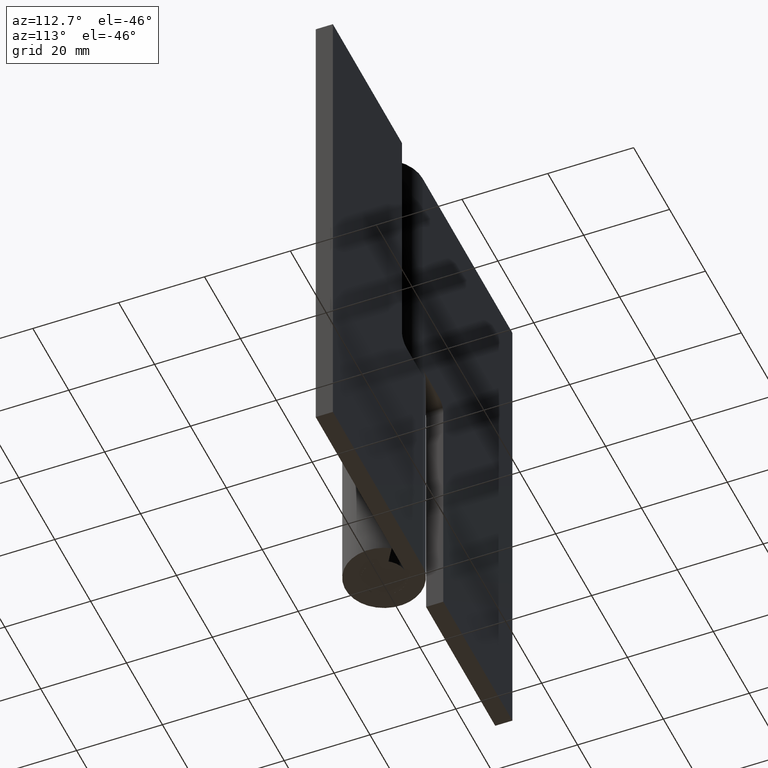
[diagram: clean part render]
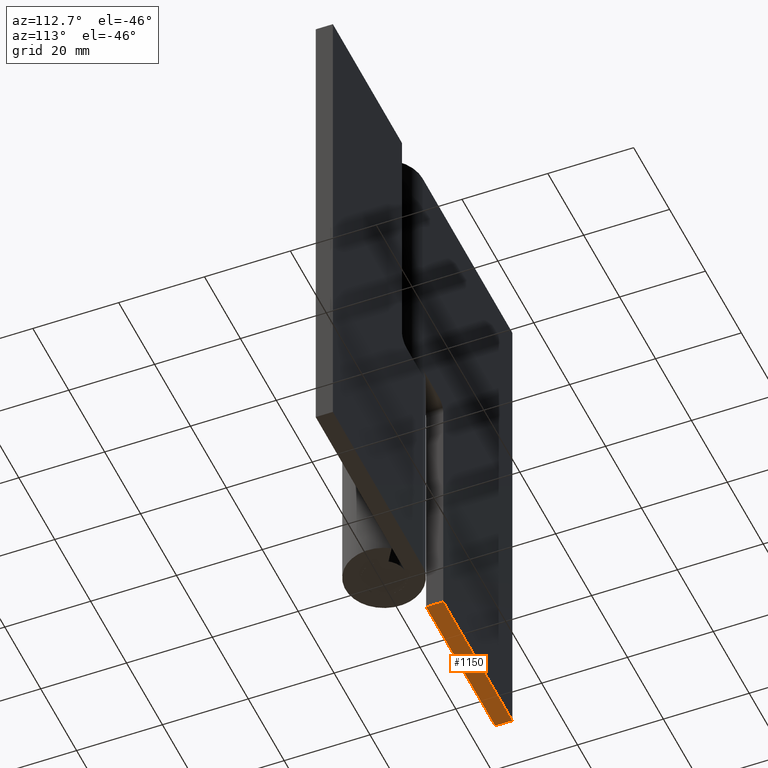
[diagram: same view with one face highlighted and labeled with its STEP entity id]
A machine part, auxiliary view. The second image highlights one B-rep face of the part: STEP entity #1150.
In plain terms, the highlighted face is a freeform B-spline surface patch.
Its self-contained STEP definition (entity closure, byte-faithful):
#891=CARTESIAN_POINT('',(-11.500000000000000,9.0,0.0));
#892=VERTEX_POINT('',#891);
#893=CARTESIAN_POINT('',(-11.500000000000000,5.0,0.0));
#894=VERTEX_POINT('',#893);
#895=CARTESIAN_POINT('',(-11.500000000000000,9.0,0.0));
#896=CARTESIAN_POINT('',(-11.500000000000000,5.0,0.0));
#897=QUASI_UNIFORM_CURVE('',1,(#895,#896),.UNSPECIFIED.,.F.,.U.);
#898=EDGE_CURVE('',#892,#894,#897,.T.);
#1123=CARTESIAN_POINT('',(-51.923066887189819,4.800200007752776,0.0));
#1124=CARTESIAN_POINT('',(-9.576924424376578,4.800200007752776,0.0));
#1125=CARTESIAN_POINT('',(-51.923066887189819,9.199800099535585,0.0));
#1126=CARTESIAN_POINT('',(-9.576924424376578,9.199800099535585,0.0));
#1127=B_SPLINE_SURFACE_WITH_KNOTS('',1,1,((#1123,#1125),(#1124,#1126)),.UNSPECIFIED.,.F.,.F.,.U.,(2,2),(2,2),(0.0,42.346142462813241),(0.0,4.399600091782809),.UNSPECIFIED.);
#1128=ORIENTED_EDGE('',*,*,#898,.T.);
#1129=CARTESIAN_POINT('',(-49.999991999999899,5.0,0.0));
#1130=VERTEX_POINT('',#1129);
#1131=CARTESIAN_POINT('',(-11.500000000000000,5.0,0.0));
#1132=CARTESIAN_POINT('',(-49.999991999999899,5.0,0.0));
#1133=QUASI_UNIFORM_CURVE('',1,(#1131,#1132),.UNSPECIFIED.,.F.,.U.);
#1134=EDGE_CURVE('',#894,#1130,#1133,.T.);
#1135=ORIENTED_EDGE('',*,*,#1134,.T.);
#1136=CARTESIAN_POINT('',(-49.999991999999899,9.0,0.0));
#1137=VERTEX_POINT('',#1136);
#1138=CARTESIAN_POINT('',(-49.999991999999899,5.0,0.0));
#1139=CARTESIAN_POINT('',(-49.999991999999899,9.0,0.0));
#1140=QUASI_UNIFORM_CURVE('',1,(#1138,#1139),.UNSPECIFIED.,.F.,.U.);
#1141=EDGE_CURVE('',#1130,#1137,#1140,.T.);
#1142=ORIENTED_EDGE('',*,*,#1141,.T.);
#1143=CARTESIAN_POINT('',(-49.999991999999899,9.0,0.0));
#1144=CARTESIAN_POINT('',(-11.500000000000000,9.0,0.0));
#1145=QUASI_UNIFORM_CURVE('',1,(#1143,#1144),.UNSPECIFIED.,.F.,.U.);
#1146=EDGE_CURVE('',#1137,#892,#1145,.T.);
#1147=ORIENTED_EDGE('',*,*,#1146,.T.);
#1148=EDGE_LOOP('',(#1128,#1135,#1142,#1147));
#1149=FACE_OUTER_BOUND('',#1148,.T.);
#1150=ADVANCED_FACE('',(#1149),#1127,.F.);